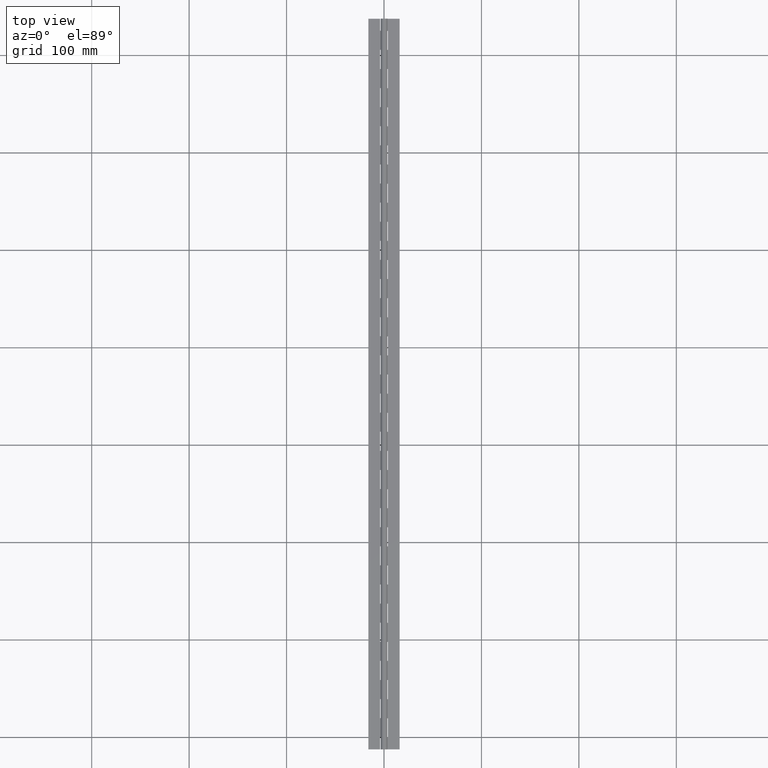
[diagram: clean part render]
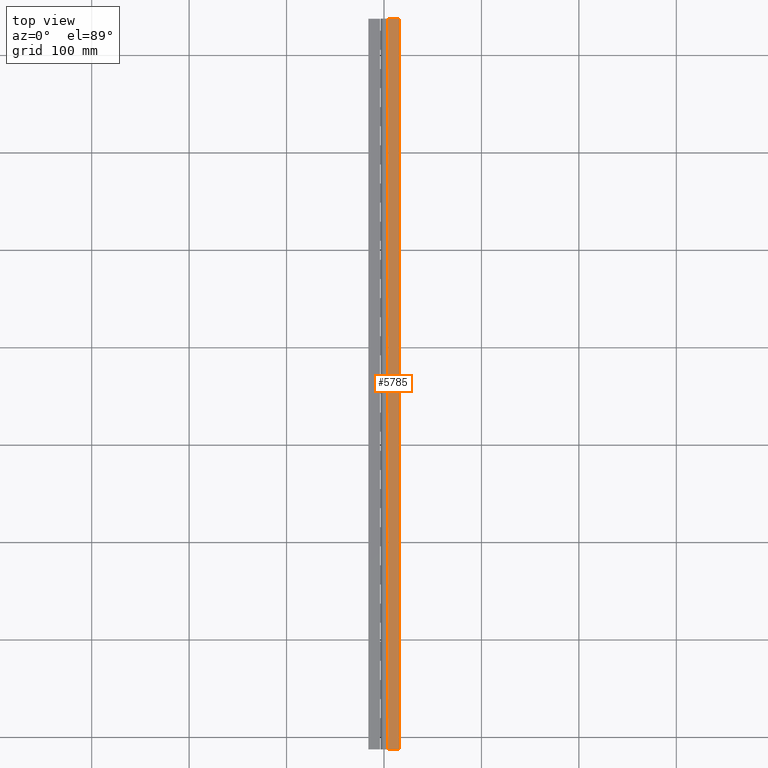
[diagram: same view with one face highlighted and labeled with its STEP entity id]
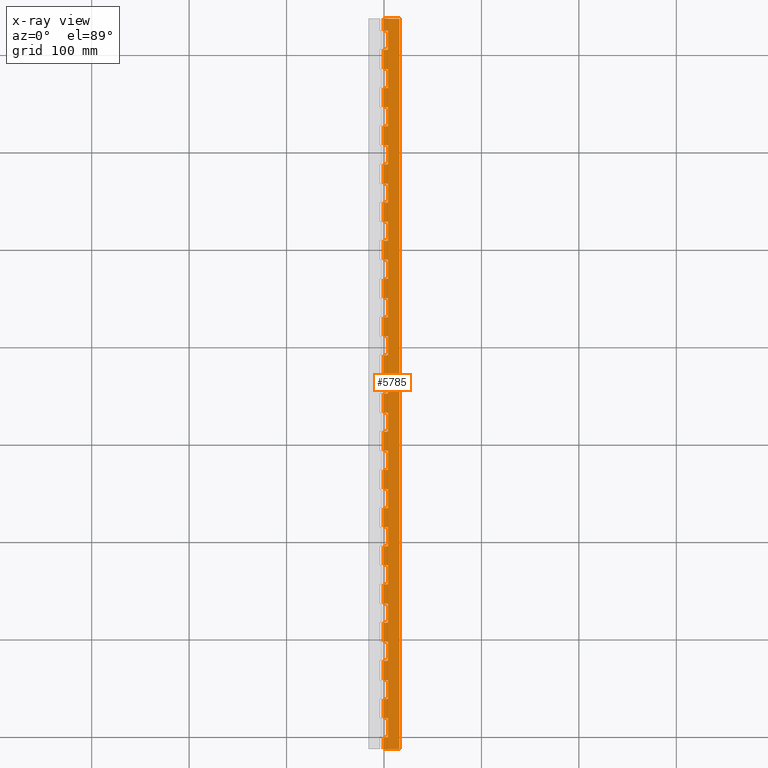
[diagram: x-ray of the same camera — body ghosted, the highlighted face saturated]
A machine part, top view. The second image highlights one B-rep face of the part: STEP entity #5785.
The next image is the same camera in x-ray: the body ghosted, the highlighted face saturated — about 0% of this face is hidden behind the body in this view.
In plain terms, the highlighted planar face has unit normal (-0, 0, -1).
Its self-contained STEP definition (entity closure, byte-faithful):
#46 = VECTOR ( 'NONE', #7787, 1000.000000000000000 ) ;
#70 = ORIENTED_EDGE ( 'NONE', *, *, #6547, .T. ) ;
#88 = VERTEX_POINT ( 'NONE', #4262 ) ;
#96 = DIRECTION ( 'NONE',  ( -1.770125995894701000E-016, -1.000000000000000000, 4.797936125805254900E-033 ) ) ;
#110 = CARTESIAN_POINT ( 'NONE',  ( 2.143125705451388300E-016, 156.8000000000000400, -1.750002187502756900 ) ) ;
#123 = DIRECTION ( 'NONE',  ( -1.000000000000000000, 0.0000000000000000000, 2.710505431213761100E-017 ) ) ;
#127 = ORIENTED_EDGE ( 'NONE', *, *, #689, .T. ) ;
#147 = VECTOR ( 'NONE', #5331, 1000.000000000000000 ) ;
#190 = VERTEX_POINT ( 'NONE', #280 ) ;
#192 = VERTEX_POINT ( 'NONE', #4032 ) ;
#208 = AXIS2_PLACEMENT_3D ( 'NONE', #6941, #5030, #1177 ) ;
#232 = CARTESIAN_POINT ( 'NONE',  ( 0.0000000000000000000, 509.6000000000000800, -1.750002187502756900 ) ) ;
#239 = CARTESIAN_POINT ( 'NONE',  ( 3.999999999999996400, 588.0000000000001100, -1.750002187502756900 ) ) ;
#259 = CARTESIAN_POINT ( 'NONE',  ( 2.143125705451388300E-016, 411.6000000000000800, -1.750002187502756900 ) ) ;
#260 = VECTOR ( 'NONE', #1749, 1000.000000000000000 ) ;
#280 = CARTESIAN_POINT ( 'NONE',  ( 3.999999999999996400, 156.8000000000000100, -1.750002187502756900 ) ) ;
#284 = DIRECTION ( 'NONE',  ( -0.0000000000000000000, -1.000000000000000000, -0.0000000000000000000 ) ) ;
#293 = ORIENTED_EDGE ( 'NONE', *, *, #6629, .T. ) ;
#307 = ORIENTED_EDGE ( 'NONE', *, *, #4766, .T. ) ;
#312 = CARTESIAN_POINT ( 'NONE',  ( 3.999999999999996400, 39.20000000000000300, -1.750002187502756900 ) ) ;
#322 = CARTESIAN_POINT ( 'NONE',  ( 4.000000000000000000, 725.2000000000000500, -1.750002187502756900 ) ) ;
#333 = DIRECTION ( 'NONE',  ( 1.000000000000000000, 0.0000000000000000000, -2.710505431213761100E-017 ) ) ;
#340 = CARTESIAN_POINT ( 'NONE',  ( 0.0000000000000000000, 392.0000000000000600, -1.750002187502756900 ) ) ;
#348 = ORIENTED_EDGE ( 'NONE', *, *, #3790, .T. ) ;
#380 = ORIENTED_EDGE ( 'NONE', *, *, #7377, .T. ) ;
#382 = VERTEX_POINT ( 'NONE', #2614 ) ;
#421 = DIRECTION ( 'NONE',  ( -0.0000000000000000000, -1.000000000000000000, -0.0000000000000000000 ) ) ;
#423 = DIRECTION ( 'NONE',  ( -1.000000000000000000, 0.0000000000000000000, 2.710505431213761100E-017 ) ) ;
#429 = VECTOR ( 'NONE', #3706, 1000.000000000000000 ) ;
#441 = CARTESIAN_POINT ( 'NONE',  ( 4.000000000000000000, 450.8000000000000700, -1.750002187502757200 ) ) ;
#444 = VECTOR ( 'NONE', #7472, 1000.000000000000000 ) ;
#445 = DIRECTION ( 'NONE',  ( -0.0000000000000000000, -1.000000000000000000, -0.0000000000000000000 ) ) ;
#458 = CARTESIAN_POINT ( 'NONE',  ( 2.143134577426118000E-016, 725.2000000000000500, -1.750002187502757400 ) ) ;
#459 = EDGE_CURVE ( 'NONE', #7339, #1007, #5737, .T. ) ;
#531 = VECTOR ( 'NONE', #4950, 1000.000000000000000 ) ;
#547 = EDGE_CURVE ( 'NONE', #6974, #5288, #4730, .T. ) ;
#573 = ORIENTED_EDGE ( 'NONE', *, *, #6178, .T. ) ;
#574 = DIRECTION ( 'NONE',  ( 1.000000000000000000, 0.0000000000000000000, -2.710505431213761100E-017 ) ) ;
#587 = EDGE_CURVE ( 'NONE', #4649, #7110, #4312, .T. ) ;
#589 = CARTESIAN_POINT ( 'NONE',  ( 0.0000000000000000000, 352.8000000000000700, -1.750002187502756900 ) ) ;
#607 = ORIENTED_EDGE ( 'NONE', *, *, #7043, .T. ) ;
#612 = DIRECTION ( 'NONE',  ( -0.0000000000000000000, -1.000000000000000000, -0.0000000000000000000 ) ) ;
#629 = VECTOR ( 'NONE', #4957, 1000.000000000000000 ) ;
#648 = ORIENTED_EDGE ( 'NONE', *, *, #4593, .T. ) ;
#662 = VECTOR ( 'NONE', #2937, 1000.000000000000000 ) ;
#689 = EDGE_CURVE ( 'NONE', #8235, #3723, #6742, .T. ) ;
#697 = CARTESIAN_POINT ( 'NONE',  ( 16.00000000000000000, 725.2000000000000500, -1.750002187502757400 ) ) ;
#699 = LINE ( 'NONE', #1661, #2199 ) ;
#720 = LINE ( 'NONE', #1738, #531 ) ;
#723 = VERTEX_POINT ( 'NONE', #1608 ) ;
#774 = DIRECTION ( 'NONE',  ( -0.0000000000000000000, -1.000000000000000000, -0.0000000000000000000 ) ) ;
#775 = ORIENTED_EDGE ( 'NONE', *, *, #8078, .F. ) ;
#784 = ORIENTED_EDGE ( 'NONE', *, *, #4315, .T. ) ;
#791 = CARTESIAN_POINT ( 'NONE',  ( 0.0000000000000000000, 686.0000000000000000, -1.750002187502756900 ) ) ;
#809 = CARTESIAN_POINT ( 'NONE',  ( 4.000000000000000000, 646.8000000000000700, -1.750002187502757200 ) ) ;
#811 = LINE ( 'NONE', #2599, #2516 ) ;
#818 = LINE ( 'NONE', #6570, #7479 ) ;
#831 = EDGE_CURVE ( 'NONE', #1288, #7523, #4004, .T. ) ;
#837 = EDGE_CURVE ( 'NONE', #2977, #6085, #7465, .T. ) ;
#861 = CARTESIAN_POINT ( 'NONE',  ( 0.0000000000000000000, 294.0000000000000600, -1.750002187502756900 ) ) ;
#868 = CARTESIAN_POINT ( 'NONE',  ( 2.143125705451388300E-016, 470.4000000000000300, -1.750002187502756900 ) ) ;
#883 = ORIENTED_EDGE ( 'NONE', *, *, #4797, .T. ) ;
#886 = CARTESIAN_POINT ( 'NONE',  ( 4.000000000000000000, 490.0000000000000600, -1.750002187502757200 ) ) ;
#892 = DIRECTION ( 'NONE',  ( -0.0000000000000000000, -1.000000000000000000, -0.0000000000000000000 ) ) ;
#912 = VECTOR ( 'NONE', #7284, 1000.000000000000000 ) ;
#918 = VECTOR ( 'NONE', #284, 1000.000000000000000 ) ;
#920 = DIRECTION ( 'NONE',  ( -1.000000000000000000, 0.0000000000000000000, 2.710505431213761100E-017 ) ) ;
#926 = LINE ( 'NONE', #4793, #6963 ) ;
#929 = VERTEX_POINT ( 'NONE', #8072 ) ;
#947 = EDGE_CURVE ( 'NONE', #6255, #7860, #1504, .T. ) ;
#952 = EDGE_CURVE ( 'NONE', #6085, #1288, #8160, .T. ) ;
#954 = VECTOR ( 'NONE', #7841, 1000.000000000000000 ) ;
#985 = CARTESIAN_POINT ( 'NONE',  ( 4.000000000000034600, 725.2000000000000500, -1.750002187502757200 ) ) ;
#1007 = VERTEX_POINT ( 'NONE', #2123 ) ;
#1016 = DIRECTION ( 'NONE',  ( 1.000000000000000000, 0.0000000000000000000, -2.710505431213761100E-017 ) ) ;
#1019 = CARTESIAN_POINT ( 'NONE',  ( 0.0000000000000000000, 411.6000000000000800, -1.750002187502756900 ) ) ;
#1032 = CARTESIAN_POINT ( 'NONE',  ( 4.000000000000125200, 725.2000000000000500, -1.750002187502757200 ) ) ;
#1038 = ORIENTED_EDGE ( 'NONE', *, *, #1386, .T. ) ;
#1041 = VECTOR ( 'NONE', #2111, 1000.000000000000000 ) ;
#1048 = VECTOR ( 'NONE', #5512, 1000.000000000000000 ) ;
#1049 = EDGE_CURVE ( 'NONE', #4943, #723, #2404, .T. ) ;
#1056 = EDGE_CURVE ( 'NONE', #7860, #1394, #3898, .T. ) ;
#1058 = ORIENTED_EDGE ( 'NONE', *, *, #1748, .T. ) ;
#1068 = DIRECTION ( 'NONE',  ( -1.770125995894701000E-016, -1.000000000000000000, 4.797936125805254900E-033 ) ) ;
#1069 = DIRECTION ( 'NONE',  ( 1.000000000000000000, 0.0000000000000000000, 0.0000000000000000000 ) ) ;
#1100 = ORIENTED_EDGE ( 'NONE', *, *, #6437, .F. ) ;
#1146 = CARTESIAN_POINT ( 'NONE',  ( 3.999999999999996400, 235.2000000000000200, -1.750002187502756900 ) ) ;
#1152 = LINE ( 'NONE', #6889, #5861 ) ;
#1177 = DIRECTION ( 'NONE',  ( -1.000000000000000000, 0.0000000000000000000, 2.710505431213761100E-017 ) ) ;
#1210 = ORIENTED_EDGE ( 'NONE', *, *, #837, .T. ) ;
#1215 = CARTESIAN_POINT ( 'NONE',  ( 2.143134577426118000E-016, -12.40000000000000000, -1.750002187502757400 ) ) ;
#1223 = ORIENTED_EDGE ( 'NONE', *, *, #1732, .T. ) ;
#1225 = DIRECTION ( 'NONE',  ( -1.000000000000000000, 0.0000000000000000000, 2.710505431213761100E-017 ) ) ;
#1251 = LINE ( 'NONE', #5756, #7893 ) ;
#1254 = CARTESIAN_POINT ( 'NONE',  ( 2.143125705451388300E-016, 176.4000000000000100, -1.750002187502756900 ) ) ;
#1262 = VERTEX_POINT ( 'NONE', #322 ) ;
#1271 = CARTESIAN_POINT ( 'NONE',  ( 2.143125705451388300E-016, 333.2000000000000500, -1.750002187502756900 ) ) ;
#1288 = VERTEX_POINT ( 'NONE', #4293 ) ;
#1289 = CARTESIAN_POINT ( 'NONE',  ( 2.143125705451388300E-016, 490.0000000000000600, -1.750002187502756900 ) ) ;
#1297 = CARTESIAN_POINT ( 'NONE',  ( 2.143125705451388300E-016, 196.0000000000000600, -1.750002187502756900 ) ) ;
#1300 = VECTOR ( 'NONE', #1972, 1000.000000000000000 ) ;
#1302 = ORIENTED_EDGE ( 'NONE', *, *, #3162, .T. ) ;
#1314 = CARTESIAN_POINT ( 'NONE',  ( 2.143125705451388300E-016, 137.1999999999999900, -1.750002187502756900 ) ) ;
#1332 = EDGE_CURVE ( 'NONE', #7657, #7313, #3191, .T. ) ;
#1339 = ORIENTED_EDGE ( 'NONE', *, *, #8319, .T. ) ;
#1345 = VERTEX_POINT ( 'NONE', #4248 ) ;
#1381 = CARTESIAN_POINT ( 'NONE',  ( 4.000000000000056000, 725.2000000000000500, -1.750002187502757200 ) ) ;
#1386 = EDGE_CURVE ( 'NONE', #7523, #6255, #4502, .T. ) ;
#1394 = VERTEX_POINT ( 'NONE', #239 ) ;
#1429 = VERTEX_POINT ( 'NONE', #5434 ) ;
#1465 = VERTEX_POINT ( 'NONE', #3472 ) ;
#1475 = EDGE_CURVE ( 'NONE', #88, #2549, #699, .T. ) ;
#1496 = CARTESIAN_POINT ( 'NONE',  ( 0.0000000000000000000, 254.8000000000000400, -1.750002187502756900 ) ) ;
#1501 = VECTOR ( 'NONE', #7609, 1000.000000000000000 ) ;
#1504 = LINE ( 'NONE', #6352, #6428 ) ;
#1518 = CARTESIAN_POINT ( 'NONE',  ( 2.143134577426118000E-016, 725.2000000000000500, -1.750002187502757400 ) ) ;
#1556 = CARTESIAN_POINT ( 'NONE',  ( 4.000000000000083500, 725.2000000000000500, -1.750002187502757200 ) ) ;
#1563 = EDGE_CURVE ( 'NONE', #7568, #6864, #6510, .T. ) ;
#1591 = ORIENTED_EDGE ( 'NONE', *, *, #1056, .T. ) ;
#1608 = CARTESIAN_POINT ( 'NONE',  ( 2.143125705451388300E-016, 568.3999999999999800, -1.750002187502756900 ) ) ;
#1611 = EDGE_CURVE ( 'NONE', #7033, #7339, #4604, .T. ) ;
#1620 = ORIENTED_EDGE ( 'NONE', *, *, #5186, .T. ) ;
#1624 = DIRECTION ( 'NONE',  ( -1.770125995894701000E-016, -1.000000000000000000, 4.797936125805254900E-033 ) ) ;
#1629 = ORIENTED_EDGE ( 'NONE', *, *, #947, .T. ) ;
#1637 = CARTESIAN_POINT ( 'NONE',  ( 2.143134577426118000E-016, 725.2000000000000500, -1.750002187502757400 ) ) ;
#1653 = CARTESIAN_POINT ( 'NONE',  ( 0.0000000000000000000, 470.4000000000000300, -1.750002187502756900 ) ) ;
#1661 = CARTESIAN_POINT ( 'NONE',  ( 4.000000000000007100, 725.2000000000000500, -1.750002187502757200 ) ) ;
#1664 = EDGE_CURVE ( 'NONE', #3974, #2482, #2493, .T. ) ;
#1675 = ORIENTED_EDGE ( 'NONE', *, *, #4226, .T. ) ;
#1677 = CARTESIAN_POINT ( 'NONE',  ( 0.0000000000000000000, 0.0000000000000000000, -1.750002187502757400 ) ) ;
#1680 = ORIENTED_EDGE ( 'NONE', *, *, #1563, .T. ) ;
#1686 = LINE ( 'NONE', #4117, #6604 ) ;
#1687 = VERTEX_POINT ( 'NONE', #110 ) ;
#1702 = ORIENTED_EDGE ( 'NONE', *, *, #4513, .T. ) ;
#1732 = EDGE_CURVE ( 'NONE', #4332, #5898, #5115, .T. ) ;
#1738 = CARTESIAN_POINT ( 'NONE',  ( 4.000000000000027500, 725.2000000000000500, -1.750002187502757200 ) ) ;
#1744 = LINE ( 'NONE', #1653, #3239 ) ;
#1748 = EDGE_CURVE ( 'NONE', #4724, #4649, #1686, .T. ) ;
#1749 = DIRECTION ( 'NONE',  ( -1.000000000000000000, 0.0000000000000000000, 2.710505431213761100E-017 ) ) ;
#1785 = ORIENTED_EDGE ( 'NONE', *, *, #1664, .T. ) ;
#1806 = CARTESIAN_POINT ( 'NONE',  ( 0.0000000000000000000, 666.4000000000000900, -1.750002187502756900 ) ) ;
#1815 = EDGE_CURVE ( 'NONE', #3293, #2977, #4496, .T. ) ;
#1821 = DIRECTION ( 'NONE',  ( -0.0000000000000000000, -1.000000000000000000, -0.0000000000000000000 ) ) ;
#1825 = CARTESIAN_POINT ( 'NONE',  ( 4.000000000000000000, 333.2000000000000500, -1.750002187502757200 ) ) ;
#1828 = VERTEX_POINT ( 'NONE', #6690 ) ;
#1833 = LINE ( 'NONE', #1496, #147 ) ;
#1844 = VECTOR ( 'NONE', #1821, 1000.000000000000000 ) ;
#1881 = CARTESIAN_POINT ( 'NONE',  ( 3.999999999999996400, 509.6000000000000800, -1.750002187502756900 ) ) ;
#1891 = ORIENTED_EDGE ( 'NONE', *, *, #1611, .T. ) ;
#1908 = CARTESIAN_POINT ( 'NONE',  ( 2.143125705451388300E-016, 294.0000000000000600, -1.750002187502756900 ) ) ;
#1920 = VECTOR ( 'NONE', #5017, 1000.000000000000000 ) ;
#1939 = VECTOR ( 'NONE', #1225, 1000.000000000000000 ) ;
#1972 = DIRECTION ( 'NONE',  ( -0.0000000000000000000, -1.000000000000000000, -0.0000000000000000000 ) ) ;
#1989 = VERTEX_POINT ( 'NONE', #2455 ) ;
#2013 = DIRECTION ( 'NONE',  ( -1.770125995894701000E-016, -1.000000000000000000, 4.797936125805254900E-033 ) ) ;
#2021 = CARTESIAN_POINT ( 'NONE',  ( 0.0000000000000000000, 19.59999999999995200, -1.750002187502756900 ) ) ;
#2023 = CARTESIAN_POINT ( 'NONE',  ( 2.143125705451388300E-016, 588.0000000000001100, -1.750002187502756900 ) ) ;
#2042 = ORIENTED_EDGE ( 'NONE', *, *, #2921, .T. ) ;
#2085 = ORIENTED_EDGE ( 'NONE', *, *, #2162, .T. ) ;
#2087 = ORIENTED_EDGE ( 'NONE', *, *, #1815, .T. ) ;
#2089 = CARTESIAN_POINT ( 'NONE',  ( 2.143125705451388300E-016, 352.8000000000000700, -1.750002187502756900 ) ) ;
#2111 = DIRECTION ( 'NONE',  ( -1.770125995894701000E-016, -1.000000000000000000, 4.797936125805254900E-033 ) ) ;
#2117 = DIRECTION ( 'NONE',  ( -1.000000000000000000, 0.0000000000000000000, 2.710505431213761100E-017 ) ) ;
#2123 = CARTESIAN_POINT ( 'NONE',  ( 2.143125705451388300E-016, 509.6000000000000800, -1.750002187502756900 ) ) ;
#2125 = CARTESIAN_POINT ( 'NONE',  ( 16.00000000000000000, -12.40000000000000000, -1.750002187502757400 ) ) ;
#2129 = LINE ( 'NONE', #2940, #444 ) ;
#2131 = LINE ( 'NONE', #697, #46 ) ;
#2137 = EDGE_CURVE ( 'NONE', #4064, #5912, #6068, .T. ) ;
#2139 = VECTOR ( 'NONE', #6960, 1000.000000000000000 ) ;
#2140 = CARTESIAN_POINT ( 'NONE',  ( 2.143134577426118000E-016, 19.59999999999995200, -1.750002187502757400 ) ) ;
#2145 = LINE ( 'NONE', #7540, #260 ) ;
#2149 = LINE ( 'NONE', #3002, #7297 ) ;
#2158 = CARTESIAN_POINT ( 'NONE',  ( 16.00000000000000000, -12.40000000000000000, -1.750002187502757400 ) ) ;
#2162 = EDGE_CURVE ( 'NONE', #7307, #4068, #4150, .T. ) ;
#2171 = EDGE_CURVE ( 'NONE', #8269, #7349, #7608, .T. ) ;
#2174 = VERTEX_POINT ( 'NONE', #2089 ) ;
#2196 = DIRECTION ( 'NONE',  ( -1.770125995894701000E-016, -1.000000000000000000, 4.797936125805254900E-033 ) ) ;
#2199 = VECTOR ( 'NONE', #6164, 1000.000000000000000 ) ;
#2216 = LINE ( 'NONE', #1381, #4115 ) ;
#2248 = LINE ( 'NONE', #6262, #7191 ) ;
#2249 = CARTESIAN_POINT ( 'NONE',  ( 4.000000000000000000, 254.8000000000000400, -1.750002187502757200 ) ) ;
#2253 = DIRECTION ( 'NONE',  ( 1.000000000000000000, 0.0000000000000000000, -2.710505431213761100E-017 ) ) ;
#2270 = VERTEX_POINT ( 'NONE', #886 ) ;
#2280 = CARTESIAN_POINT ( 'NONE',  ( 2.143125705451388300E-016, 666.4000000000000900, -1.750002187502756900 ) ) ;
#2291 = DIRECTION ( 'NONE',  ( -0.0000000000000000000, -1.000000000000000000, -0.0000000000000000000 ) ) ;
#2316 = DIRECTION ( 'NONE',  ( -1.000000000000000000, 0.0000000000000000000, 2.710505431213761100E-017 ) ) ;
#2318 = VECTOR ( 'NONE', #5139, 1000.000000000000000 ) ;
#2332 = CARTESIAN_POINT ( 'NONE',  ( 2.143134577426118000E-016, 725.2000000000000500, -1.750002187502757400 ) ) ;
#2354 = LINE ( 'NONE', #1019, #662 ) ;
#2361 = ORIENTED_EDGE ( 'NONE', *, *, #587, .T. ) ;
#2363 = EDGE_CURVE ( 'NONE', #7231, #7033, #6370, .T. ) ;
#2365 = CARTESIAN_POINT ( 'NONE',  ( 3.999999999999996400, 117.6000000000000100, -1.750002187502756900 ) ) ;
#2370 = ORIENTED_EDGE ( 'NONE', *, *, #547, .T. ) ;
#2377 = CARTESIAN_POINT ( 'NONE',  ( 2.143134577426118000E-016, 725.2000000000000500, -1.750002187502757400 ) ) ;
#2387 = EDGE_CURVE ( 'NONE', #5898, #4149, #2545, .T. ) ;
#2392 = EDGE_CURVE ( 'NONE', #3588, #5391, #7504, .T. ) ;
#2404 = LINE ( 'NONE', #2808, #4102 ) ;
#2407 = LINE ( 'NONE', #791, #5635 ) ;
#2419 = LINE ( 'NONE', #4759, #918 ) ;
#2448 = VECTOR ( 'NONE', #7870, 1000.000000000000000 ) ;
#2455 = CARTESIAN_POINT ( 'NONE',  ( 3.999999999999996400, 274.4000000000000300, -1.750002187502756900 ) ) ;
#2482 = VERTEX_POINT ( 'NONE', #4296 ) ;
#2488 = VERTEX_POINT ( 'NONE', #3031 ) ;
#2493 = LINE ( 'NONE', #1518, #7455 ) ;
#2499 = ORIENTED_EDGE ( 'NONE', *, *, #4829, .T. ) ;
#2503 = EDGE_CURVE ( 'NONE', #4149, #7657, #2145, .T. ) ;
#2513 = ORIENTED_EDGE ( 'NONE', *, *, #8191, .T. ) ;
#2516 = VECTOR ( 'NONE', #4544, 1000.000000000000000 ) ;
#2522 = CARTESIAN_POINT ( 'NONE',  ( 2.143125705451388300E-016, 39.20000000000001000, -1.750002187502756900 ) ) ;
#2545 = LINE ( 'NONE', #1032, #1048 ) ;
#2549 = VERTEX_POINT ( 'NONE', #3734 ) ;
#2599 = CARTESIAN_POINT ( 'NONE',  ( 0.0000000000000000000, 274.4000000000000300, -1.750002187502756900 ) ) ;
#2614 = CARTESIAN_POINT ( 'NONE',  ( 4.000000000000000000, 215.6000000000000500, -1.750002187502757200 ) ) ;
#2632 = CARTESIAN_POINT ( 'NONE',  ( 3.999999999999996400, 352.8000000000000700, -1.750002187502756900 ) ) ;
#2641 = VECTOR ( 'NONE', #4945, 1000.000000000000000 ) ;
#2700 = CARTESIAN_POINT ( 'NONE',  ( 0.0000000000000000000, 372.4000000000000900, -1.750002187502756900 ) ) ;
#2719 = VECTOR ( 'NONE', #423, 1000.000000000000000 ) ;
#2721 = CARTESIAN_POINT ( 'NONE',  ( 2.143125705451388300E-016, 450.8000000000000700, -1.750002187502756900 ) ) ;
#2733 = LINE ( 'NONE', #5951, #1041 ) ;
#2737 = VECTOR ( 'NONE', #3542, 1000.000000000000000 ) ;
#2760 = ORIENTED_EDGE ( 'NONE', *, *, #2171, .T. ) ;
#2765 = VERTEX_POINT ( 'NONE', #5278 ) ;
#2785 = VECTOR ( 'NONE', #892, 1000.000000000000000 ) ;
#2790 = EDGE_CURVE ( 'NONE', #2765, #1262, #6365, .T. ) ;
#2803 = EDGE_CURVE ( 'NONE', #4068, #4803, #2733, .T. ) ;
#2808 = CARTESIAN_POINT ( 'NONE',  ( 2.143134577426118000E-016, 725.2000000000000500, -1.750002187502757400 ) ) ;
#2851 = LINE ( 'NONE', #2125, #5871 ) ;
#2853 = ORIENTED_EDGE ( 'NONE', *, *, #6876, .T. ) ;
#2869 = EDGE_CURVE ( 'NONE', #2549, #3293, #5553, .T. ) ;
#2872 = DIRECTION ( 'NONE',  ( -0.0000000000000000000, -1.000000000000000000, -0.0000000000000000000 ) ) ;
#2921 = EDGE_CURVE ( 'NONE', #4803, #2174, #3635, .T. ) ;
#2937 = DIRECTION ( 'NONE',  ( 1.000000000000000000, 0.0000000000000000000, -2.710505431213761100E-017 ) ) ;
#2940 = CARTESIAN_POINT ( 'NONE',  ( 4.000000000000000000, 725.2000000000000500, -1.750002187502756900 ) ) ;
#2950 = VECTOR ( 'NONE', #2253, 1000.000000000000000 ) ;
#2968 = ORIENTED_EDGE ( 'NONE', *, *, #5884, .T. ) ;
#2975 = ORIENTED_EDGE ( 'NONE', *, *, #4701, .T. ) ;
#2977 = VERTEX_POINT ( 'NONE', #4464 ) ;
#2981 = ORIENTED_EDGE ( 'NONE', *, *, #7758, .T. ) ;
#2996 = VERTEX_POINT ( 'NONE', #5792 ) ;
#3002 = CARTESIAN_POINT ( 'NONE',  ( 0.0000000000000000000, 235.2000000000000200, -1.750002187502756900 ) ) ;
#3008 = LINE ( 'NONE', #4433, #8176 ) ;
#3011 = VERTEX_POINT ( 'NONE', #5176 ) ;
#3028 = VECTOR ( 'NONE', #3397, 1000.000000000000000 ) ;
#3031 = CARTESIAN_POINT ( 'NONE',  ( 4.000000000000000000, 98.00000000000001400, -1.750002187502757200 ) ) ;
#3065 = DIRECTION ( 'NONE',  ( 1.000000000000000000, 0.0000000000000000000, -2.710505431213761100E-017 ) ) ;
#3081 = CARTESIAN_POINT ( 'NONE',  ( 0.0000000000000000000, 313.6000000000000200, -1.750002187502756900 ) ) ;
#3145 = VECTOR ( 'NONE', #4165, 1000.000000000000000 ) ;
#3158 = CARTESIAN_POINT ( 'NONE',  ( 4.000000000000000000, 58.80000000000000400, -1.750002187502757200 ) ) ;
#3162 = EDGE_CURVE ( 'NONE', #2482, #7568, #1833, .T. ) ;
#3186 = DIRECTION ( 'NONE',  ( -1.000000000000000000, 0.0000000000000000000, 2.710505431213761100E-017 ) ) ;
#3191 = LINE ( 'NONE', #5456, #4916 ) ;
#3196 = LINE ( 'NONE', #6290, #1501 ) ;
#3239 = VECTOR ( 'NONE', #4865, 1000.000000000000000 ) ;
#3245 = EDGE_CURVE ( 'NONE', #1345, #1465, #7685, .T. ) ;
#3279 = VECTOR ( 'NONE', #7750, 1000.000000000000000 ) ;
#3293 = VERTEX_POINT ( 'NONE', #2280 ) ;
#3300 = VECTOR ( 'NONE', #5704, 1000.000000000000000 ) ;
#3308 = LINE ( 'NONE', #5540, #2719 ) ;
#3327 = EDGE_CURVE ( 'NONE', #1262, #2996, #2129, .T. ) ;
#3333 = CARTESIAN_POINT ( 'NONE',  ( 2.143134577426118000E-016, 725.2000000000000500, -1.750002187502757400 ) ) ;
#3348 = CARTESIAN_POINT ( 'NONE',  ( 2.143125705451388300E-016, 215.6000000000000200, -1.750002187502756900 ) ) ;
#3364 = EDGE_CURVE ( 'NONE', #4181, #4279, #5148, .T. ) ;
#3375 = VECTOR ( 'NONE', #6488, 1000.000000000000000 ) ;
#3379 = EDGE_LOOP ( 'NONE', ( #7279, #7141, #5875, #573, #127, #5887, #5488, #4134, #2087, #1210, #5876, #7837, #1038, #1629, #1591, #380, #8316, #8068, #3763, #1675, #348, #6264, #1891, #3965, #784, #7282, #3437, #7843, #8311, #4466, #2513, #8321, #2968, #1620, #7934, #3886, #7847, #2085, #6868, #2042, #607, #1058, #2361, #3803, #2760, #4071, #6153, #883, #1785, #1302, #1680, #1339, #648, #3593, #5576, #6899, #1702, #2370, #293, #5542, #3678, #6507, #2499, #2975, #7587, #5344, #2981, #70, #2853, #307, #6130, #4885, #4684, #1223, #6592, #5997, #8290, #775, #1100, #6057 ) ) ;
#3397 = DIRECTION ( 'NONE',  ( 1.000000000000000000, 0.0000000000000000000, -2.710505431213761100E-017 ) ) ;
#3402 = CARTESIAN_POINT ( 'NONE',  ( 3.999999999999996400, 0.0000000000000000000, -1.750002187502756900 ) ) ;
#3418 = VECTOR ( 'NONE', #5561, 1000.000000000000000 ) ;
#3427 = CARTESIAN_POINT ( 'NONE',  ( 4.000000000000021300, 725.2000000000000500, -1.750002187502757200 ) ) ;
#3437 = ORIENTED_EDGE ( 'NONE', *, *, #5974, .T. ) ;
#3472 = CARTESIAN_POINT ( 'NONE',  ( 2.143125705451388300E-016, 392.0000000000000600, -1.750002187502756900 ) ) ;
#3482 = DIRECTION ( 'NONE',  ( -1.770125995894701000E-016, -1.000000000000000000, 4.797936125805254900E-033 ) ) ;
#3491 = CARTESIAN_POINT ( 'NONE',  ( 2.143125705451388300E-016, 58.79999999999996200, -1.750002187502756900 ) ) ;
#3525 = VERTEX_POINT ( 'NONE', #259 ) ;
#3542 = DIRECTION ( 'NONE',  ( 1.000000000000000000, 0.0000000000000000000, -2.710505431213761100E-017 ) ) ;
#3566 = EDGE_CURVE ( 'NONE', #3873, #3588, #5650, .T. ) ;
#3588 = VERTEX_POINT ( 'NONE', #312 ) ;
#3593 = ORIENTED_EDGE ( 'NONE', *, *, #7571, .T. ) ;
#3620 = LINE ( 'NONE', #5662, #1920 ) ;
#3635 = LINE ( 'NONE', #589, #1939 ) ;
#3653 = CARTESIAN_POINT ( 'NONE',  ( 2.143134577426118000E-016, 725.2000000000000500, -1.750002187502757400 ) ) ;
#3662 = DIRECTION ( 'NONE',  ( 1.000000000000000000, 0.0000000000000000000, -2.710505431213761100E-017 ) ) ;
#3678 = ORIENTED_EDGE ( 'NONE', *, *, #5731, .T. ) ;
#3682 = CARTESIAN_POINT ( 'NONE',  ( 2.143125705451388300E-016, 607.6000000000000200, -1.750002187502756900 ) ) ;
#3694 = DIRECTION ( 'NONE',  ( -0.0000000000000000000, -1.000000000000000000, -0.0000000000000000000 ) ) ;
#3697 = DIRECTION ( 'NONE',  ( -0.0000000000000000000, -1.000000000000000000, -0.0000000000000000000 ) ) ;
#3706 = DIRECTION ( 'NONE',  ( -1.000000000000000000, 0.0000000000000000000, 2.710505431213761100E-017 ) ) ;
#3711 = VERTEX_POINT ( 'NONE', #6186 ) ;
#3712 = VECTOR ( 'NONE', #3694, 1000.000000000000000 ) ;
#3723 = VERTEX_POINT ( 'NONE', #8119 ) ;
#3731 = DIRECTION ( 'NONE',  ( -1.000000000000000000, 0.0000000000000000000, 2.710505431213761100E-017 ) ) ;
#3734 = CARTESIAN_POINT ( 'NONE',  ( 3.999999999999996400, 666.4000000000000900, -1.750002187502756900 ) ) ;
#3739 = LINE ( 'NONE', #4392, #1844 ) ;
#3747 = CARTESIAN_POINT ( 'NONE',  ( 4.000000000000076400, 725.2000000000000500, -1.750002187502757200 ) ) ;
#3763 = ORIENTED_EDGE ( 'NONE', *, *, #4555, .T. ) ;
#3790 = EDGE_CURVE ( 'NONE', #4879, #7231, #7263, .T. ) ;
#3801 = VECTOR ( 'NONE', #3878, 1000.000000000000000 ) ;
#3803 = ORIENTED_EDGE ( 'NONE', *, *, #6882, .T. ) ;
#3863 = CARTESIAN_POINT ( 'NONE',  ( 0.0000000000000000000, 58.79999999999996200, -1.750002187502756900 ) ) ;
#3873 = VERTEX_POINT ( 'NONE', #3158 ) ;
#3878 = DIRECTION ( 'NONE',  ( 1.000000000000000000, 0.0000000000000000000, -2.710505431213761100E-017 ) ) ;
#3886 = ORIENTED_EDGE ( 'NONE', *, *, #3245, .T. ) ;
#3898 = LINE ( 'NONE', #3427, #6021 ) ;
#3947 = VECTOR ( 'NONE', #574, 1000.000000000000000 ) ;
#3960 = CARTESIAN_POINT ( 'NONE',  ( 0.0000000000000000000, 196.0000000000000600, -1.750002187502756900 ) ) ;
#3965 = ORIENTED_EDGE ( 'NONE', *, *, #459, .T. ) ;
#3970 = CARTESIAN_POINT ( 'NONE',  ( 2.143125705451388300E-016, 548.8000000000000700, -1.750002187502756900 ) ) ;
#3974 = VERTEX_POINT ( 'NONE', #7155 ) ;
#3991 = DIRECTION ( 'NONE',  ( 1.000000000000000000, 0.0000000000000000000, -2.710505431213761100E-017 ) ) ;
#3994 = EDGE_CURVE ( 'NONE', #7018, #1345, #2216, .T. ) ;
#4000 = VECTOR ( 'NONE', #1068, 1000.000000000000000 ) ;
#4004 = LINE ( 'NONE', #7764, #7252 ) ;
#4032 = CARTESIAN_POINT ( 'NONE',  ( 2.143125705451388300E-016, 431.2000000000001000, -1.750002187502756900 ) ) ;
#4037 = VECTOR ( 'NONE', #96, 1000.000000000000000 ) ;
#4064 = VERTEX_POINT ( 'NONE', #5273 ) ;
#4068 = VERTEX_POINT ( 'NONE', #7236 ) ;
#4071 = ORIENTED_EDGE ( 'NONE', *, *, #6123, .T. ) ;
#4102 = VECTOR ( 'NONE', #2872, 1000.000000000000000 ) ;
#4111 = CARTESIAN_POINT ( 'NONE',  ( 0.0000000000000000000, 548.8000000000000700, -1.750002187502756900 ) ) ;
#4115 = VECTOR ( 'NONE', #5217, 1000.000000000000000 ) ;
#4117 = CARTESIAN_POINT ( 'NONE',  ( 0.0000000000000000000, 333.2000000000000500, -1.750002187502756900 ) ) ;
#4120 = LINE ( 'NONE', #4260, #7572 ) ;
#4129 = VECTOR ( 'NONE', #2117, 1000.000000000000000 ) ;
#4134 = ORIENTED_EDGE ( 'NONE', *, *, #2869, .T. ) ;
#4149 = VERTEX_POINT ( 'NONE', #3402 ) ;
#4150 = LINE ( 'NONE', #2700, #2448 ) ;
#4165 = DIRECTION ( 'NONE',  ( -1.770125995894701000E-016, -1.000000000000000000, 4.797936125805254900E-033 ) ) ;
#4181 = VERTEX_POINT ( 'NONE', #868 ) ;
#4215 = CARTESIAN_POINT ( 'NONE',  ( 0.0000000000000000000, 39.20000000000001000, -1.750002187502756900 ) ) ;
#4216 = CARTESIAN_POINT ( 'NONE',  ( 4.000000000000069300, 725.2000000000000500, -1.750002187502757200 ) ) ;
#4226 = EDGE_CURVE ( 'NONE', #3711, #4879, #8274, .T. ) ;
#4241 = VERTEX_POINT ( 'NONE', #3491 ) ;
#4248 = CARTESIAN_POINT ( 'NONE',  ( 3.999999999999996400, 392.0000000000000600, -1.750002187502756900 ) ) ;
#4260 = CARTESIAN_POINT ( 'NONE',  ( 2.143134577426118000E-016, 725.2000000000000500, -1.750002187502757400 ) ) ;
#4262 = CARTESIAN_POINT ( 'NONE',  ( 4.000000000000000000, 686.0000000000000000, -1.750002187502757200 ) ) ;
#4279 = VERTEX_POINT ( 'NONE', #2721 ) ;
#4293 = CARTESIAN_POINT ( 'NONE',  ( 3.999999999999996400, 627.2000000000000500, -1.750002187502756900 ) ) ;
#4296 = CARTESIAN_POINT ( 'NONE',  ( 2.143125705451388300E-016, 254.8000000000000400, -1.750002187502756900 ) ) ;
#4312 = LINE ( 'NONE', #4216, #912 ) ;
#4315 = EDGE_CURVE ( 'NONE', #1007, #6389, #818, .T. ) ;
#4332 = VERTEX_POINT ( 'NONE', #2140 ) ;
#4337 = VECTOR ( 'NONE', #920, 1000.000000000000000 ) ;
#4345 = LINE ( 'NONE', #2377, #2641 ) ;
#4362 = PLANE ( 'NONE',  #208 ) ;
#4392 = CARTESIAN_POINT ( 'NONE',  ( 2.143134577426118000E-016, 725.2000000000000500, -1.750002187502757400 ) ) ;
#4393 = CARTESIAN_POINT ( 'NONE',  ( 0.0000000000000000000, 97.99999999999997200, -1.750002187502756900 ) ) ;
#4401 = CARTESIAN_POINT ( 'NONE',  ( 4.000000000000014200, 725.2000000000000500, -1.750002187502757200 ) ) ;
#4422 = DIRECTION ( 'NONE',  ( -1.000000000000000000, 0.0000000000000000000, 2.710505431213761100E-017 ) ) ;
#4433 = CARTESIAN_POINT ( 'NONE',  ( 2.143134577426118000E-016, 725.2000000000000500, -1.750002187502757400 ) ) ;
#4443 = VECTOR ( 'NONE', #5894, 1000.000000000000000 ) ;
#4457 = CARTESIAN_POINT ( 'NONE',  ( 0.0000000000000000000, 588.0000000000001100, -1.750002187502756900 ) ) ;
#4464 = CARTESIAN_POINT ( 'NONE',  ( 2.143125705451388300E-016, 646.8000000000000700, -1.750002187502756900 ) ) ;
#4466 = ORIENTED_EDGE ( 'NONE', *, *, #5776, .T. ) ;
#4478 = CARTESIAN_POINT ( 'NONE',  ( 4.000000000000000000, 19.60000000000000100, -1.750002187502757200 ) ) ;
#4496 = LINE ( 'NONE', #1637, #1300 ) ;
#4502 = LINE ( 'NONE', #3653, #2785 ) ;
#4513 = EDGE_CURVE ( 'NONE', #5912, #6974, #4120, .T. ) ;
#4519 = VECTOR ( 'NONE', #3186, 1000.000000000000000 ) ;
#4530 = LINE ( 'NONE', #6622, #7774 ) ;
#4544 = DIRECTION ( 'NONE',  ( -1.000000000000000000, 0.0000000000000000000, 2.710505431213761100E-017 ) ) ;
#4555 = EDGE_CURVE ( 'NONE', #4688, #3711, #720, .T. ) ;
#4557 = VECTOR ( 'NONE', #1069, 1000.000000000000000 ) ;
#4567 = CARTESIAN_POINT ( 'NONE',  ( 4.000000000000041700, 725.2000000000000500, -1.750002187502757200 ) ) ;
#4572 = CARTESIAN_POINT ( 'NONE',  ( 4.000000000000103900, 725.2000000000000500, -1.750002187502757200 ) ) ;
#4593 = EDGE_CURVE ( 'NONE', #7491, #5007, #5227, .T. ) ;
#4604 = LINE ( 'NONE', #985, #7842 ) ;
#4640 = DIRECTION ( 'NONE',  ( 1.000000000000000000, 0.0000000000000000000, -2.710505431213761100E-017 ) ) ;
#4649 = VERTEX_POINT ( 'NONE', #1825 ) ;
#4672 = LINE ( 'NONE', #6091, #2950 ) ;
#4681 = EDGE_CURVE ( 'NONE', #7209, #1989, #6531, .T. ) ;
#4684 = ORIENTED_EDGE ( 'NONE', *, *, #7232, .T. ) ;
#4688 = VERTEX_POINT ( 'NONE', #7014 ) ;
#4701 = EDGE_CURVE ( 'NONE', #6816, #5985, #7865, .T. ) ;
#4724 = VERTEX_POINT ( 'NONE', #1271 ) ;
#4730 = LINE ( 'NONE', #5284, #6235 ) ;
#4759 = CARTESIAN_POINT ( 'NONE',  ( 2.143134577426118000E-016, 725.2000000000000500, -1.750002187502757400 ) ) ;
#4766 = EDGE_CURVE ( 'NONE', #4241, #3873, #7468, .T. ) ;
#4773 = CARTESIAN_POINT ( 'NONE',  ( 0.0000000000000000000, 705.6000000000001400, -1.750002187502756900 ) ) ;
#4793 = CARTESIAN_POINT ( 'NONE',  ( 4.000000000000096800, 725.2000000000000500, -1.750002187502757200 ) ) ;
#4797 = EDGE_CURVE ( 'NONE', #1989, #3974, #811, .T. ) ;
#4803 = VERTEX_POINT ( 'NONE', #2632 ) ;
#4805 = CARTESIAN_POINT ( 'NONE',  ( 0.0000000000000000000, 215.6000000000000200, -1.750002187502756900 ) ) ;
#4813 = DIRECTION ( 'NONE',  ( -1.000000000000000000, 0.0000000000000000000, 2.710505431213761100E-017 ) ) ;
#4829 = EDGE_CURVE ( 'NONE', #7451, #6816, #7059, .T. ) ;
#4865 = DIRECTION ( 'NONE',  ( -1.000000000000000000, 0.0000000000000000000, 2.710505431213761100E-017 ) ) ;
#4879 = VERTEX_POINT ( 'NONE', #3970 ) ;
#4881 = CARTESIAN_POINT ( 'NONE',  ( 2.143125705451388300E-016, 313.6000000000000200, -1.750002187502756900 ) ) ;
#4885 = ORIENTED_EDGE ( 'NONE', *, *, #2392, .T. ) ;
#4887 = CARTESIAN_POINT ( 'NONE',  ( 2.143134577426118000E-016, 737.6000000000000200, -1.750002187502757400 ) ) ;
#4916 = VECTOR ( 'NONE', #2291, 1000.000000000000000 ) ;
#4943 = VERTEX_POINT ( 'NONE', #2023 ) ;
#4945 = DIRECTION ( 'NONE',  ( -0.0000000000000000000, -1.000000000000000000, -0.0000000000000000000 ) ) ;
#4950 = DIRECTION ( 'NONE',  ( -1.770125995894701000E-016, -1.000000000000000000, 4.797936125805254900E-033 ) ) ;
#4957 = DIRECTION ( 'NONE',  ( -0.0000000000000000000, -1.000000000000000000, -0.0000000000000000000 ) ) ;
#5001 = EDGE_CURVE ( 'NONE', #3723, #88, #2407, .T. ) ;
#5007 = VERTEX_POINT ( 'NONE', #3348 ) ;
#5017 = DIRECTION ( 'NONE',  ( -0.0000000000000000000, -1.000000000000000000, -0.0000000000000000000 ) ) ;
#5030 = DIRECTION ( 'NONE',  ( -2.710505431213761100E-017, 0.0000000000000000000, -1.000000000000000000 ) ) ;
#5037 = VECTOR ( 'NONE', #6218, 1000.000000000000000 ) ;
#5112 = DIRECTION ( 'NONE',  ( -0.0000000000000000000, -1.000000000000000000, -0.0000000000000000000 ) ) ;
#5115 = LINE ( 'NONE', #2021, #3375 ) ;
#5139 = DIRECTION ( 'NONE',  ( 1.000000000000000000, 0.0000000000000000000, -2.710505431213761100E-017 ) ) ;
#5143 = EDGE_CURVE ( 'NONE', #6410, #7451, #4672, .T. ) ;
#5148 = LINE ( 'NONE', #2332, #3418 ) ;
#5176 = CARTESIAN_POINT ( 'NONE',  ( 16.00000000000000000, 737.6000000000000200, -1.750002187502757400 ) ) ;
#5186 = EDGE_CURVE ( 'NONE', #3525, #7018, #2354, .T. ) ;
#5206 = CARTESIAN_POINT ( 'NONE',  ( 0.0000000000000000000, 646.8000000000000700, -1.750002187502756900 ) ) ;
#5217 = DIRECTION ( 'NONE',  ( -1.770125995894701000E-016, -1.000000000000000000, 4.797936125805254900E-033 ) ) ;
#5227 = LINE ( 'NONE', #6917, #3712 ) ;
#5273 = CARTESIAN_POINT ( 'NONE',  ( 3.999999999999996400, 196.0000000000000300, -1.750002187502756900 ) ) ;
#5278 = CARTESIAN_POINT ( 'NONE',  ( 2.143125705451388300E-016, 725.2000000000000500, -1.750002187502756900 ) ) ;
#5284 = CARTESIAN_POINT ( 'NONE',  ( 0.0000000000000000000, 176.4000000000000100, -1.750002187502756900 ) ) ;
#5288 = VERTEX_POINT ( 'NONE', #5585 ) ;
#5316 = DIRECTION ( 'NONE',  ( -1.000000000000000000, 0.0000000000000000000, 0.0000000000000000000 ) ) ;
#5317 = VECTOR ( 'NONE', #2013, 1000.000000000000000 ) ;
#5324 = DIRECTION ( 'NONE',  ( 1.000000000000000000, 0.0000000000000000000, -2.710505431213761100E-017 ) ) ;
#5326 = LINE ( 'NONE', #3081, #6853 ) ;
#5331 = DIRECTION ( 'NONE',  ( 1.000000000000000000, 0.0000000000000000000, -2.710505431213761100E-017 ) ) ;
#5334 = EDGE_CURVE ( 'NONE', #1429, #2488, #5678, .T. ) ;
#5344 = ORIENTED_EDGE ( 'NONE', *, *, #5334, .T. ) ;
#5356 = CARTESIAN_POINT ( 'NONE',  ( 2.143125705451388300E-016, 235.2000000000000200, -1.750002187502756900 ) ) ;
#5362 = CARTESIAN_POINT ( 'NONE',  ( 4.000000000000000000, 411.6000000000000800, -1.750002187502757200 ) ) ;
#5391 = VERTEX_POINT ( 'NONE', #2522 ) ;
#5424 = DIRECTION ( 'NONE',  ( -1.770125995894701000E-016, -1.000000000000000000, 4.797936125805254900E-033 ) ) ;
#5434 = CARTESIAN_POINT ( 'NONE',  ( 2.143125705451388300E-016, 97.99999999999997200, -1.750002187502756900 ) ) ;
#5454 = FACE_OUTER_BOUND ( 'NONE', #3379, .T. ) ;
#5456 = CARTESIAN_POINT ( 'NONE',  ( 2.143134577426118000E-016, 725.2000000000000500, -1.750002187502757400 ) ) ;
#5458 = CARTESIAN_POINT ( 'NONE',  ( 2.143125705451388300E-016, 705.6000000000001400, -1.750002187502756900 ) ) ;
#5488 = ORIENTED_EDGE ( 'NONE', *, *, #1475, .T. ) ;
#5512 = DIRECTION ( 'NONE',  ( -1.770125995894701000E-016, -1.000000000000000000, 4.797936125805254900E-033 ) ) ;
#5527 = VECTOR ( 'NONE', #3697, 1000.000000000000000 ) ;
#5540 = CARTESIAN_POINT ( 'NONE',  ( 0.0000000000000000000, 156.8000000000000400, -1.750002187502756900 ) ) ;
#5542 = ORIENTED_EDGE ( 'NONE', *, *, #6760, .T. ) ;
#5553 = LINE ( 'NONE', #1806, #2139 ) ;
#5556 = CARTESIAN_POINT ( 'NONE',  ( 4.000000000000090600, 725.2000000000000500, -1.750002187502757200 ) ) ;
#5561 = DIRECTION ( 'NONE',  ( -0.0000000000000000000, -1.000000000000000000, -0.0000000000000000000 ) ) ;
#5576 = ORIENTED_EDGE ( 'NONE', *, *, #7684, .T. ) ;
#5585 = CARTESIAN_POINT ( 'NONE',  ( 4.000000000000000000, 176.4000000000000300, -1.750002187502757200 ) ) ;
#5629 = VECTOR ( 'NONE', #5112, 1000.000000000000000 ) ;
#5635 = VECTOR ( 'NONE', #4640, 1000.000000000000000 ) ;
#5650 = LINE ( 'NONE', #6686, #7169 ) ;
#5662 = CARTESIAN_POINT ( 'NONE',  ( 2.143134577426118000E-016, 725.2000000000000500, -1.750002187502757400 ) ) ;
#5673 = CARTESIAN_POINT ( 'NONE',  ( 2.143134577426118000E-016, 737.6000000000000200, -1.750002187502757400 ) ) ;
#5674 = EDGE_CURVE ( 'NONE', #5679, #4181, #1744, .T. ) ;
#5678 = LINE ( 'NONE', #4393, #3947 ) ;
#5679 = VERTEX_POINT ( 'NONE', #6803 ) ;
#5697 = VERTEX_POINT ( 'NONE', #441 ) ;
#5698 = EDGE_CURVE ( 'NONE', #6286, #3011, #6272, .T. ) ;
#5704 = DIRECTION ( 'NONE',  ( -1.770125995894701000E-016, -1.000000000000000000, 4.797936125805254900E-033 ) ) ;
#5726 = LINE ( 'NONE', #5556, #4000 ) ;
#5731 = EDGE_CURVE ( 'NONE', #1687, #6410, #4345, .T. ) ;
#5737 = LINE ( 'NONE', #232, #429 ) ;
#5739 = EDGE_CURVE ( 'NONE', #723, #4688, #1152, .T. ) ;
#5755 = CARTESIAN_POINT ( 'NONE',  ( 4.000000000000000000, 607.6000000000000200, -1.750002187502757200 ) ) ;
#5756 = CARTESIAN_POINT ( 'NONE',  ( 2.143134577426118000E-016, 725.2000000000000500, -1.750002187502757400 ) ) ;
#5766 = VECTOR ( 'NONE', #2316, 1000.000000000000000 ) ;
#5773 = CARTESIAN_POINT ( 'NONE',  ( 2.143125705451388300E-016, 78.40000000000002000, -1.750002187502756900 ) ) ;
#5776 = EDGE_CURVE ( 'NONE', #4279, #5697, #2248, .T. ) ;
#5785 = ADVANCED_FACE ( 'NONE', ( #5454 ), #4362, .F. ) ;
#5792 = CARTESIAN_POINT ( 'NONE',  ( 3.999999999999996400, 705.6000000000001400, -1.750002187502756900 ) ) ;
#5812 = EDGE_CURVE ( 'NONE', #1465, #7307, #3739, .T. ) ;
#5861 = VECTOR ( 'NONE', #3662, 1000.000000000000000 ) ;
#5871 = VECTOR ( 'NONE', #5316, 1000.000000000000000 ) ;
#5875 = ORIENTED_EDGE ( 'NONE', *, *, #3327, .T. ) ;
#5876 = ORIENTED_EDGE ( 'NONE', *, *, #952, .T. ) ;
#5884 = EDGE_CURVE ( 'NONE', #192, #3525, #1251, .T. ) ;
#5887 = ORIENTED_EDGE ( 'NONE', *, *, #5001, .T. ) ;
#5894 = DIRECTION ( 'NONE',  ( 1.000000000000000000, 0.0000000000000000000, -2.710505431213761100E-017 ) ) ;
#5898 = VERTEX_POINT ( 'NONE', #4478 ) ;
#5912 = VERTEX_POINT ( 'NONE', #1297 ) ;
#5951 = CARTESIAN_POINT ( 'NONE',  ( 4.000000000000062200, 725.2000000000000500, -1.750002187502757200 ) ) ;
#5960 = CARTESIAN_POINT ( 'NONE',  ( 0.0000000000000000000, 78.40000000000002000, -1.750002187502756900 ) ) ;
#5974 = EDGE_CURVE ( 'NONE', #2270, #5679, #7697, .T. ) ;
#5978 = DIRECTION ( 'NONE',  ( -1.000000000000000000, 0.0000000000000000000, 2.710505431213761100E-017 ) ) ;
#5985 = VERTEX_POINT ( 'NONE', #6477 ) ;
#5997 = ORIENTED_EDGE ( 'NONE', *, *, #2503, .T. ) ;
#6021 = VECTOR ( 'NONE', #3482, 1000.000000000000000 ) ;
#6057 = ORIENTED_EDGE ( 'NONE', *, *, #5698, .F. ) ;
#6068 = LINE ( 'NONE', #3960, #954 ) ;
#6085 = VERTEX_POINT ( 'NONE', #809 ) ;
#6091 = CARTESIAN_POINT ( 'NONE',  ( 0.0000000000000000000, 137.1999999999999900, -1.750002187502756900 ) ) ;
#6123 = EDGE_CURVE ( 'NONE', #7349, #7209, #6462, .T. ) ;
#6130 = ORIENTED_EDGE ( 'NONE', *, *, #3566, .T. ) ;
#6134 = LINE ( 'NONE', #6778, #7661 ) ;
#6153 = ORIENTED_EDGE ( 'NONE', *, *, #4681, .T. ) ;
#6164 = DIRECTION ( 'NONE',  ( -1.770125995894701000E-016, -1.000000000000000000, 4.797936125805254900E-033 ) ) ;
#6178 = EDGE_CURVE ( 'NONE', #2996, #8235, #7786, .T. ) ;
#6186 = CARTESIAN_POINT ( 'NONE',  ( 3.999999999999996400, 548.8000000000000700, -1.750002187502756900 ) ) ;
#6218 = DIRECTION ( 'NONE',  ( -0.0000000000000000000, -1.000000000000000000, -0.0000000000000000000 ) ) ;
#6235 = VECTOR ( 'NONE', #3991, 1000.000000000000000 ) ;
#6255 = VERTEX_POINT ( 'NONE', #3682 ) ;
#6262 = CARTESIAN_POINT ( 'NONE',  ( 0.0000000000000000000, 450.8000000000000700, -1.750002187502756900 ) ) ;
#6264 = ORIENTED_EDGE ( 'NONE', *, *, #2363, .T. ) ;
#6272 = LINE ( 'NONE', #4887, #4557 ) ;
#6286 = VERTEX_POINT ( 'NONE', #5673 ) ;
#6290 = CARTESIAN_POINT ( 'NONE',  ( 4.000000000000111000, 725.2000000000000500, -1.750002187502757200 ) ) ;
#6332 = VECTOR ( 'NONE', #333, 1000.000000000000000 ) ;
#6347 = CARTESIAN_POINT ( 'NONE',  ( 0.0000000000000000000, 117.6000000000000400, -1.750002187502756900 ) ) ;
#6352 = CARTESIAN_POINT ( 'NONE',  ( 0.0000000000000000000, 607.6000000000000200, -1.750002187502756900 ) ) ;
#6356 = VECTOR ( 'NONE', #4813, 1000.000000000000000 ) ;
#6365 = LINE ( 'NONE', #6571, #4443 ) ;
#6370 = LINE ( 'NONE', #8071, #2737 ) ;
#6389 = VERTEX_POINT ( 'NONE', #1289 ) ;
#6395 = VERTEX_POINT ( 'NONE', #5773 ) ;
#6398 = CARTESIAN_POINT ( 'NONE',  ( 2.143134577426118000E-016, 725.2000000000000500, -1.750002187502757400 ) ) ;
#6410 = VERTEX_POINT ( 'NONE', #1314 ) ;
#6428 = VECTOR ( 'NONE', #7015, 1000.000000000000000 ) ;
#6437 = EDGE_CURVE ( 'NONE', #3011, #7494, #2131, .T. ) ;
#6462 = LINE ( 'NONE', #861, #3028 ) ;
#6477 = CARTESIAN_POINT ( 'NONE',  ( 2.143125705451388300E-016, 117.6000000000000400, -1.750002187502756900 ) ) ;
#6488 = DIRECTION ( 'NONE',  ( 1.000000000000000000, 0.0000000000000000000, -2.710505431213761100E-017 ) ) ;
#6507 = ORIENTED_EDGE ( 'NONE', *, *, #5143, .T. ) ;
#6510 = LINE ( 'NONE', #1556, #3279 ) ;
#6531 = LINE ( 'NONE', #3747, #3300 ) ;
#6538 = VECTOR ( 'NONE', #8025, 1000.000000000000000 ) ;
#6547 = EDGE_CURVE ( 'NONE', #929, #6395, #7583, .T. ) ;
#6570 = CARTESIAN_POINT ( 'NONE',  ( 2.143134577426118000E-016, 725.2000000000000500, -1.750002187502757400 ) ) ;
#6571 = CARTESIAN_POINT ( 'NONE',  ( 0.0000000000000000000, 725.2000000000000500, -1.750002187502756900 ) ) ;
#6592 = ORIENTED_EDGE ( 'NONE', *, *, #2387, .T. ) ;
#6604 = VECTOR ( 'NONE', #5324, 1000.000000000000000 ) ;
#6622 = CARTESIAN_POINT ( 'NONE',  ( 0.0000000000000000000, 431.2000000000001000, -1.750002187502756900 ) ) ;
#6629 = EDGE_CURVE ( 'NONE', #5288, #190, #926, .T. ) ;
#6658 = CARTESIAN_POINT ( 'NONE',  ( 4.000000000000000000, 529.2000000000000500, -1.750002187502757200 ) ) ;
#6674 = CARTESIAN_POINT ( 'NONE',  ( 2.143125705451388300E-016, 627.2000000000000500, -1.750002187502756900 ) ) ;
#6686 = CARTESIAN_POINT ( 'NONE',  ( 4.000000000000118100, 725.2000000000000500, -1.750002187502757200 ) ) ;
#6690 = CARTESIAN_POINT ( 'NONE',  ( 3.999999999999996400, 431.2000000000001000, -1.750002187502756900 ) ) ;
#6742 = LINE ( 'NONE', #458, #5037 ) ;
#6760 = EDGE_CURVE ( 'NONE', #190, #1687, #3308, .T. ) ;
#6778 = CARTESIAN_POINT ( 'NONE',  ( 0.0000000000000000000, 490.0000000000000600, -1.750002187502756900 ) ) ;
#6803 = CARTESIAN_POINT ( 'NONE',  ( 3.999999999999996400, 470.4000000000000300, -1.750002187502756900 ) ) ;
#6816 = VERTEX_POINT ( 'NONE', #2365 ) ;
#6853 = VECTOR ( 'NONE', #3731, 1000.000000000000000 ) ;
#6864 = VERTEX_POINT ( 'NONE', #1146 ) ;
#6868 = ORIENTED_EDGE ( 'NONE', *, *, #2803, .T. ) ;
#6876 = EDGE_CURVE ( 'NONE', #6395, #4241, #3620, .T. ) ;
#6882 = EDGE_CURVE ( 'NONE', #7110, #8269, #5326, .T. ) ;
#6889 = CARTESIAN_POINT ( 'NONE',  ( 0.0000000000000000000, 568.3999999999999800, -1.750002187502756900 ) ) ;
#6899 = ORIENTED_EDGE ( 'NONE', *, *, #2137, .T. ) ;
#6917 = CARTESIAN_POINT ( 'NONE',  ( 2.143134577426118000E-016, 725.2000000000000500, -1.750002187502757400 ) ) ;
#6923 = CARTESIAN_POINT ( 'NONE',  ( 2.143125705451388300E-016, 529.2000000000000500, -1.750002187502756900 ) ) ;
#6941 = CARTESIAN_POINT ( 'NONE',  ( 0.0000000000000000000, 725.2000000000000500, -1.750002187502756900 ) ) ;
#6956 = EDGE_CURVE ( 'NONE', #5985, #1429, #3008, .T. ) ;
#6960 = DIRECTION ( 'NONE',  ( -1.000000000000000000, 0.0000000000000000000, 2.710505431213761100E-017 ) ) ;
#6963 = VECTOR ( 'NONE', #5424, 1000.000000000000000 ) ;
#6974 = VERTEX_POINT ( 'NONE', #1254 ) ;
#7006 = EDGE_CURVE ( 'NONE', #1828, #192, #4530, .T. ) ;
#7014 = CARTESIAN_POINT ( 'NONE',  ( 4.000000000000000000, 568.3999999999999800, -1.750002187502757200 ) ) ;
#7015 = DIRECTION ( 'NONE',  ( 1.000000000000000000, 0.0000000000000000000, -2.710505431213761100E-017 ) ) ;
#7018 = VERTEX_POINT ( 'NONE', #5362 ) ;
#7033 = VERTEX_POINT ( 'NONE', #6658 ) ;
#7043 = EDGE_CURVE ( 'NONE', #2174, #4724, #2419, .T. ) ;
#7059 = LINE ( 'NONE', #4572, #5317 ) ;
#7064 = DIRECTION ( 'NONE',  ( -0.0000000000000000000, -1.000000000000000000, -0.0000000000000000000 ) ) ;
#7110 = VERTEX_POINT ( 'NONE', #7452 ) ;
#7125 = CARTESIAN_POINT ( 'NONE',  ( 4.000000000000000000, 137.2000000000000200, -1.750002187502757200 ) ) ;
#7141 = ORIENTED_EDGE ( 'NONE', *, *, #2790, .T. ) ;
#7155 = CARTESIAN_POINT ( 'NONE',  ( 2.143125705451388300E-016, 274.4000000000000300, -1.750002187502756900 ) ) ;
#7169 = VECTOR ( 'NONE', #2196, 1000.000000000000000 ) ;
#7191 = VECTOR ( 'NONE', #3065, 1000.000000000000000 ) ;
#7209 = VERTEX_POINT ( 'NONE', #8203 ) ;
#7231 = VERTEX_POINT ( 'NONE', #6923 ) ;
#7232 = EDGE_CURVE ( 'NONE', #5391, #4332, #7469, .T. ) ;
#7236 = CARTESIAN_POINT ( 'NONE',  ( 4.000000000000000000, 372.4000000000000900, -1.750002187502757200 ) ) ;
#7240 = DIRECTION ( 'NONE',  ( -0.0000000000000000000, -1.000000000000000000, -0.0000000000000000000 ) ) ;
#7252 = VECTOR ( 'NONE', #123, 1000.000000000000000 ) ;
#7263 = LINE ( 'NONE', #7588, #629 ) ;
#7279 = ORIENTED_EDGE ( 'NONE', *, *, #7864, .T. ) ;
#7282 = ORIENTED_EDGE ( 'NONE', *, *, #7625, .T. ) ;
#7284 = DIRECTION ( 'NONE',  ( -1.770125995894701000E-016, -1.000000000000000000, 4.797936125805254900E-033 ) ) ;
#7297 = VECTOR ( 'NONE', #7543, 1000.000000000000000 ) ;
#7307 = VERTEX_POINT ( 'NONE', #7640 ) ;
#7313 = VERTEX_POINT ( 'NONE', #1215 ) ;
#7339 = VERTEX_POINT ( 'NONE', #1881 ) ;
#7349 = VERTEX_POINT ( 'NONE', #1908 ) ;
#7377 = EDGE_CURVE ( 'NONE', #1394, #4943, #8164, .T. ) ;
#7405 = CARTESIAN_POINT ( 'NONE',  ( 4.000000000000048800, 725.2000000000000500, -1.750002187502757200 ) ) ;
#7407 = VECTOR ( 'NONE', #774, 1000.000000000000000 ) ;
#7451 = VERTEX_POINT ( 'NONE', #7125 ) ;
#7452 = CARTESIAN_POINT ( 'NONE',  ( 3.999999999999996400, 313.6000000000000200, -1.750002187502756900 ) ) ;
#7455 = VECTOR ( 'NONE', #421, 1000.000000000000000 ) ;
#7465 = LINE ( 'NONE', #5206, #3801 ) ;
#7468 = LINE ( 'NONE', #3863, #2318 ) ;
#7469 = LINE ( 'NONE', #7586, #5527 ) ;
#7472 = DIRECTION ( 'NONE',  ( -1.770125995894701000E-016, -1.000000000000000000, 4.797936125805254900E-033 ) ) ;
#7479 = VECTOR ( 'NONE', #7240, 1000.000000000000000 ) ;
#7491 = VERTEX_POINT ( 'NONE', #5356 ) ;
#7494 = VERTEX_POINT ( 'NONE', #2158 ) ;
#7504 = LINE ( 'NONE', #4215, #5766 ) ;
#7523 = VERTEX_POINT ( 'NONE', #6674 ) ;
#7540 = CARTESIAN_POINT ( 'NONE',  ( 0.0000000000000000000, 0.0000000000000000000, -1.750002187502756900 ) ) ;
#7543 = DIRECTION ( 'NONE',  ( -1.000000000000000000, 0.0000000000000000000, 2.710505431213761100E-017 ) ) ;
#7559 = LINE ( 'NONE', #6398, #5629 ) ;
#7568 = VERTEX_POINT ( 'NONE', #2249 ) ;
#7571 = EDGE_CURVE ( 'NONE', #5007, #382, #8064, .T. ) ;
#7572 = VECTOR ( 'NONE', #445, 1000.000000000000000 ) ;
#7583 = LINE ( 'NONE', #5960, #4129 ) ;
#7586 = CARTESIAN_POINT ( 'NONE',  ( 2.143134577426118000E-016, 725.2000000000000500, -1.750002187502757400 ) ) ;
#7587 = ORIENTED_EDGE ( 'NONE', *, *, #6956, .T. ) ;
#7588 = CARTESIAN_POINT ( 'NONE',  ( 2.143134577426118000E-016, 725.2000000000000500, -1.750002187502757400 ) ) ;
#7608 = LINE ( 'NONE', #3333, #7407 ) ;
#7609 = DIRECTION ( 'NONE',  ( -1.770125995894701000E-016, -1.000000000000000000, 4.797936125805254900E-033 ) ) ;
#7625 = EDGE_CURVE ( 'NONE', #6389, #2270, #6134, .T. ) ;
#7640 = CARTESIAN_POINT ( 'NONE',  ( 2.143125705451388300E-016, 372.4000000000000900, -1.750002187502756900 ) ) ;
#7641 = DIRECTION ( 'NONE',  ( -1.770125995894701000E-016, -1.000000000000000000, 4.797936125805254900E-033 ) ) ;
#7657 = VERTEX_POINT ( 'NONE', #1677 ) ;
#7661 = VECTOR ( 'NONE', #1016, 1000.000000000000000 ) ;
#7684 = EDGE_CURVE ( 'NONE', #382, #4064, #5726, .T. ) ;
#7685 = LINE ( 'NONE', #340, #6356 ) ;
#7697 = LINE ( 'NONE', #4567, #4037 ) ;
#7750 = DIRECTION ( 'NONE',  ( -1.770125995894701000E-016, -1.000000000000000000, 4.797936125805254900E-033 ) ) ;
#7758 = EDGE_CURVE ( 'NONE', #2488, #929, #3196, .T. ) ;
#7764 = CARTESIAN_POINT ( 'NONE',  ( 0.0000000000000000000, 627.2000000000000500, -1.750002187502756900 ) ) ;
#7774 = VECTOR ( 'NONE', #5978, 1000.000000000000000 ) ;
#7786 = LINE ( 'NONE', #4773, #4337 ) ;
#7787 = DIRECTION ( 'NONE',  ( -0.0000000000000000000, -1.000000000000000000, -0.0000000000000000000 ) ) ;
#7837 = ORIENTED_EDGE ( 'NONE', *, *, #831, .T. ) ;
#7841 = DIRECTION ( 'NONE',  ( -1.000000000000000000, 0.0000000000000000000, 2.710505431213761100E-017 ) ) ;
#7842 = VECTOR ( 'NONE', #1624, 1000.000000000000000 ) ;
#7843 = ORIENTED_EDGE ( 'NONE', *, *, #5674, .T. ) ;
#7847 = ORIENTED_EDGE ( 'NONE', *, *, #5812, .T. ) ;
#7860 = VERTEX_POINT ( 'NONE', #5755 ) ;
#7864 = EDGE_CURVE ( 'NONE', #6286, #2765, #7559, .T. ) ;
#7865 = LINE ( 'NONE', #6347, #8073 ) ;
#7870 = DIRECTION ( 'NONE',  ( 1.000000000000000000, 0.0000000000000000000, -2.710505431213761100E-017 ) ) ;
#7893 = VECTOR ( 'NONE', #7064, 1000.000000000000000 ) ;
#7934 = ORIENTED_EDGE ( 'NONE', *, *, #3994, .T. ) ;
#7956 = VECTOR ( 'NONE', #7641, 1000.000000000000000 ) ;
#8025 = DIRECTION ( 'NONE',  ( -1.000000000000000000, 0.0000000000000000000, 2.710505431213761100E-017 ) ) ;
#8064 = LINE ( 'NONE', #4805, #6332 ) ;
#8068 = ORIENTED_EDGE ( 'NONE', *, *, #5739, .T. ) ;
#8071 = CARTESIAN_POINT ( 'NONE',  ( 0.0000000000000000000, 529.2000000000000500, -1.750002187502756900 ) ) ;
#8072 = CARTESIAN_POINT ( 'NONE',  ( 3.999999999999996400, 78.40000000000000600, -1.750002187502756900 ) ) ;
#8073 = VECTOR ( 'NONE', #4422, 1000.000000000000000 ) ;
#8078 = EDGE_CURVE ( 'NONE', #7494, #7313, #2851, .T. ) ;
#8119 = CARTESIAN_POINT ( 'NONE',  ( 2.143125705451388300E-016, 686.0000000000000000, -1.750002187502756900 ) ) ;
#8160 = LINE ( 'NONE', #4401, #7956 ) ;
#8164 = LINE ( 'NONE', #4457, #4519 ) ;
#8176 = VECTOR ( 'NONE', #612, 1000.000000000000000 ) ;
#8191 = EDGE_CURVE ( 'NONE', #5697, #1828, #8303, .T. ) ;
#8203 = CARTESIAN_POINT ( 'NONE',  ( 4.000000000000000000, 294.0000000000000600, -1.750002187502757200 ) ) ;
#8235 = VERTEX_POINT ( 'NONE', #5458 ) ;
#8269 = VERTEX_POINT ( 'NONE', #4881 ) ;
#8274 = LINE ( 'NONE', #4111, #6538 ) ;
#8290 = ORIENTED_EDGE ( 'NONE', *, *, #1332, .T. ) ;
#8303 = LINE ( 'NONE', #7405, #3145 ) ;
#8311 = ORIENTED_EDGE ( 'NONE', *, *, #3364, .T. ) ;
#8316 = ORIENTED_EDGE ( 'NONE', *, *, #1049, .T. ) ;
#8319 = EDGE_CURVE ( 'NONE', #6864, #7491, #2149, .T. ) ;
#8321 = ORIENTED_EDGE ( 'NONE', *, *, #7006, .T. ) ;